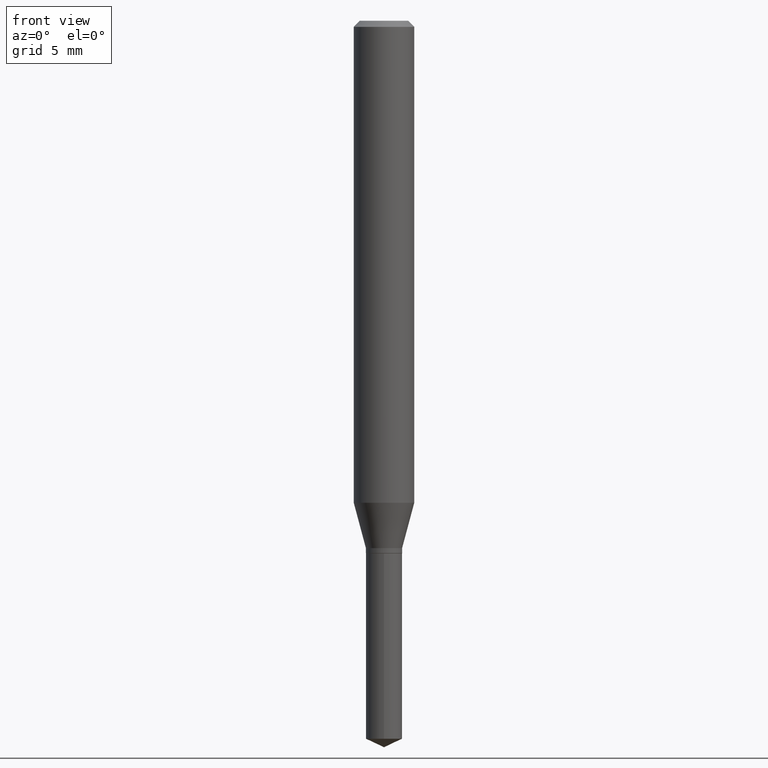
[diagram: clean part render]
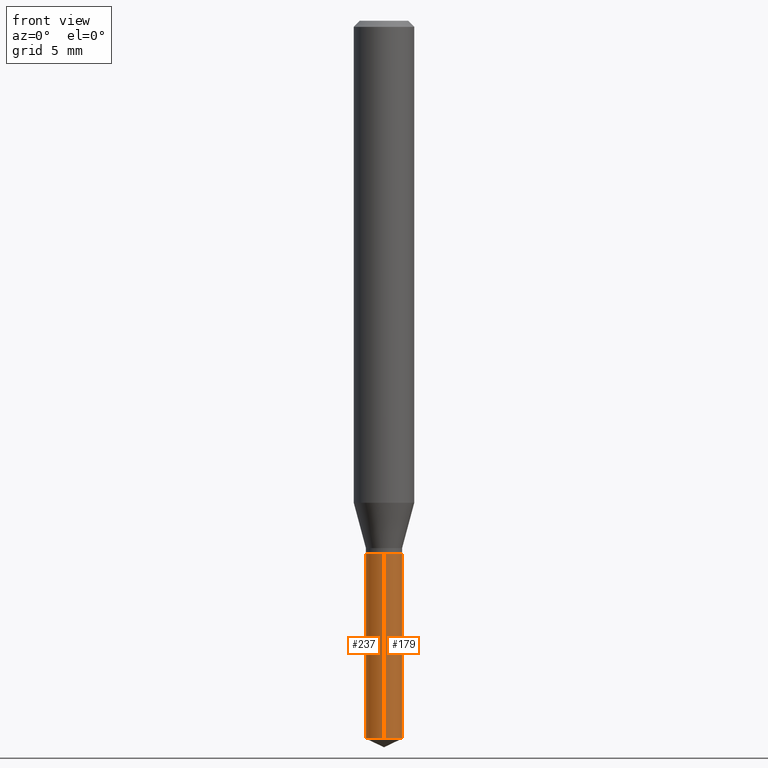
[diagram: same view with one multi-face feature highlighted, each face labeled with its STEP entity id]
A machine part, front view. The highlighted faces form ONE feature: a constant-radius fillet chain: 2 tangent blend faces with common blend radius 0.95 mm. The faces share edges in the B-rep.
Their STEP definitions:
[1] entity #237 (Cylinder):
#19 = EDGE_CURVE ( 'NONE', #219, #202, #324, .T. ) ;
#20 = CIRCLE ( 'NONE', #217, 0.03740000000000000269 ) ;
#25 = CARTESIAN_POINT ( 'NONE',  ( -2.611628041454301126E-16, -0.03740000000000517216, -1.482560093585003180 ) ) ;
#30 = VERTEX_POINT ( 'NONE', #463 ) ;
#41 = DIRECTION ( 'NONE',  ( -2.445399690415121530E-29, 3.491580316559632610E-15, 1.000000000000000000 ) ) ;
#46 = AXIS2_PLACEMENT_3D ( 'NONE', #334, #304, #74 ) ;
#51 = DIRECTION ( 'NONE',  ( -2.445399690415121530E-29, 3.491580316559632610E-15, 1.000000000000000000 ) ) ;
#53 = CIRCLE ( 'NONE', #46, 0.03740000000000000269 ) ;
#62 = CARTESIAN_POINT ( 'NONE',  ( 2.657429831743136776E-16, 0.03739999999999481933, -1.482560093585003180 ) ) ;
#74 = DIRECTION ( 'NONE',  ( -6.982962677686265922E-15, -1.000000000000000000, 3.652203200085913145E-15 ) ) ;
#78 = VECTOR ( 'NONE', #326, 39.37007874015748143 ) ;
#81 = DIRECTION ( 'NONE',  ( -2.445399690415121810E-29, 3.491580316559632610E-15, 1.000000000000000000 ) ) ;
#139 = ORIENTED_EDGE ( 'NONE', *, *, #405, .T. ) ;
#141 = VERTEX_POINT ( 'NONE', #25 ) ;
#153 = CARTESIAN_POINT ( 'NONE',  ( -2.611628041454394310E-16, -0.03740000000000384683, -1.099999999999999867 ) ) ;
#158 = AXIS2_PLACEMENT_3D ( 'NONE', #387, #41, #420 ) ;
#165 = EDGE_CURVE ( 'NONE', #202, #30, #53, .T. ) ;
#182 = DIRECTION ( 'NONE',  ( -6.982962677686265922E-15, -1.000000000000000000, 0.000000000000000000 ) ) ;
#191 = ORIENTED_EDGE ( 'NONE', *, *, #414, .T. ) ;
#202 = VERTEX_POINT ( 'NONE', #417 ) ;
#217 = AXIS2_PLACEMENT_3D ( 'NONE', #273, #51, #182 ) ;
#219 = VERTEX_POINT ( 'NONE', #62 ) ;
#237 = ADVANCED_FACE ( 'NONE', ( #382 ), #350, .T. ) ;
#250 = ORIENTED_EDGE ( 'NONE', *, *, #165, .F. ) ;
#267 = EDGE_LOOP ( 'NONE', ( #476, #139, #191, #250 ) ) ;
#273 = CARTESIAN_POINT ( 'NONE',  ( 3.625528021221597091E-29, -5.176368765390068411E-15, -1.482560093585003180 ) ) ;
#277 = LINE ( 'NONE', #153, #452 ) ;
#304 = DIRECTION ( 'NONE',  ( -2.445399690415121530E-29, 3.491580316559632610E-15, 1.000000000000000000 ) ) ;
#324 = LINE ( 'NONE', #357, #78 ) ;
#326 = DIRECTION ( 'NONE',  ( -2.445399690415121810E-29, 3.491580316559632610E-15, 1.000000000000000000 ) ) ;
#334 = CARTESIAN_POINT ( 'NONE',  ( 2.690015686803650369E-29, -3.840629472727460101E-15, -1.100000000000000089 ) ) ;
#350 = CYLINDRICAL_SURFACE ( 'NONE', #158, 0.03740000000000000269 ) ;
#357 = CARTESIAN_POINT ( 'NONE',  ( 2.657429831743043592E-16, 0.03739999999999615854, -1.100000000000000089 ) ) ;
#382 = FACE_OUTER_BOUND ( 'NONE', #267, .T. ) ;
#387 = CARTESIAN_POINT ( 'NONE',  ( 2.690015686803650369E-29, -3.840629472727460101E-15, -1.100000000000000089 ) ) ;
#405 = EDGE_CURVE ( 'NONE', #219, #141, #20, .T. ) ;
#414 = EDGE_CURVE ( 'NONE', #141, #30, #277, .T. ) ;
#417 = CARTESIAN_POINT ( 'NONE',  ( 2.657429831743138255E-16, 0.03739999999999616548, -1.100000000000000089 ) ) ;
#420 = DIRECTION ( 'NONE',  ( -6.982962677686265922E-15, -1.000000000000000000, 3.652203200085913145E-15 ) ) ;
#452 = VECTOR ( 'NONE', #81, 39.37007874015748143 ) ;
#463 = CARTESIAN_POINT ( 'NONE',  ( -2.611628041454394310E-16, -0.03740000000000384683, -1.099999999999999867 ) ) ;
#476 = ORIENTED_EDGE ( 'NONE', *, *, #19, .F. ) ;
[2] entity #179 (Cylinder):
#19 = EDGE_CURVE ( 'NONE', #219, #202, #324, .T. ) ;
#21 = ORIENTED_EDGE ( 'NONE', *, *, #19, .T. ) ;
#25 = CARTESIAN_POINT ( 'NONE',  ( -2.611628041454301126E-16, -0.03740000000000517216, -1.482560093585003180 ) ) ;
#30 = VERTEX_POINT ( 'NONE', #463 ) ;
#37 = CIRCLE ( 'NONE', #399, 0.03740000000000000269 ) ;
#43 = EDGE_CURVE ( 'NONE', #141, #219, #37, .T. ) ;
#62 = CARTESIAN_POINT ( 'NONE',  ( 2.657429831743136776E-16, 0.03739999999999481933, -1.482560093585003180 ) ) ;
#78 = VECTOR ( 'NONE', #326, 39.37007874015748143 ) ;
#81 = DIRECTION ( 'NONE',  ( -2.445399690415121810E-29, 3.491580316559632610E-15, 1.000000000000000000 ) ) ;
#125 = DIRECTION ( 'NONE',  ( -2.445399690415121530E-29, 3.491580316559632610E-15, 1.000000000000000000 ) ) ;
#129 = ORIENTED_EDGE ( 'NONE', *, *, #43, .T. ) ;
#131 = DIRECTION ( 'NONE',  ( -2.445399690415121530E-29, 3.491580316559632610E-15, 1.000000000000000000 ) ) ;
#141 = VERTEX_POINT ( 'NONE', #25 ) ;
#153 = CARTESIAN_POINT ( 'NONE',  ( -2.611628041454394310E-16, -0.03740000000000384683, -1.099999999999999867 ) ) ;
#172 = ORIENTED_EDGE ( 'NONE', *, *, #432, .F. ) ;
#179 = ADVANCED_FACE ( 'NONE', ( #447 ), #302, .T. ) ;
#197 = DIRECTION ( 'NONE',  ( -2.445399690415121530E-29, 3.491580316559632610E-15, 1.000000000000000000 ) ) ;
#202 = VERTEX_POINT ( 'NONE', #417 ) ;
#219 = VERTEX_POINT ( 'NONE', #62 ) ;
#240 = AXIS2_PLACEMENT_3D ( 'NONE', #438, #131, #366 ) ;
#277 = LINE ( 'NONE', #153, #452 ) ;
#282 = ORIENTED_EDGE ( 'NONE', *, *, #414, .F. ) ;
#286 = CARTESIAN_POINT ( 'NONE',  ( 3.625528021221597091E-29, -5.176368765390068411E-15, -1.482560093585003180 ) ) ;
#302 = CYLINDRICAL_SURFACE ( 'NONE', #240, 0.03740000000000000269 ) ;
#309 = CIRCLE ( 'NONE', #374, 0.03740000000000000269 ) ;
#324 = LINE ( 'NONE', #357, #78 ) ;
#326 = DIRECTION ( 'NONE',  ( -2.445399690415121810E-29, 3.491580316559632610E-15, 1.000000000000000000 ) ) ;
#342 = EDGE_LOOP ( 'NONE', ( #129, #21, #172, #282 ) ) ;
#357 = CARTESIAN_POINT ( 'NONE',  ( 2.657429831743043592E-16, 0.03739999999999615854, -1.100000000000000089 ) ) ;
#366 = DIRECTION ( 'NONE',  ( -6.982962677686265922E-15, -1.000000000000000000, 3.652203200085913145E-15 ) ) ;
#374 = AXIS2_PLACEMENT_3D ( 'NONE', #397, #197, #389 ) ;
#389 = DIRECTION ( 'NONE',  ( -6.982962677686265922E-15, -1.000000000000000000, 3.652203200085913145E-15 ) ) ;
#397 = CARTESIAN_POINT ( 'NONE',  ( 2.690015686803650369E-29, -3.840629472727460101E-15, -1.100000000000000089 ) ) ;
#399 = AXIS2_PLACEMENT_3D ( 'NONE', #286, #125, #465 ) ;
#414 = EDGE_CURVE ( 'NONE', #141, #30, #277, .T. ) ;
#417 = CARTESIAN_POINT ( 'NONE',  ( 2.657429831743138255E-16, 0.03739999999999616548, -1.100000000000000089 ) ) ;
#432 = EDGE_CURVE ( 'NONE', #30, #202, #309, .T. ) ;
#438 = CARTESIAN_POINT ( 'NONE',  ( 2.690015686803650369E-29, -3.840629472727460101E-15, -1.100000000000000089 ) ) ;
#447 = FACE_OUTER_BOUND ( 'NONE', #342, .T. ) ;
#452 = VECTOR ( 'NONE', #81, 39.37007874015748143 ) ;
#463 = CARTESIAN_POINT ( 'NONE',  ( -2.611628041454394310E-16, -0.03740000000000384683, -1.099999999999999867 ) ) ;
#465 = DIRECTION ( 'NONE',  ( -6.982962677686265922E-15, -1.000000000000000000, 0.000000000000000000 ) ) ;